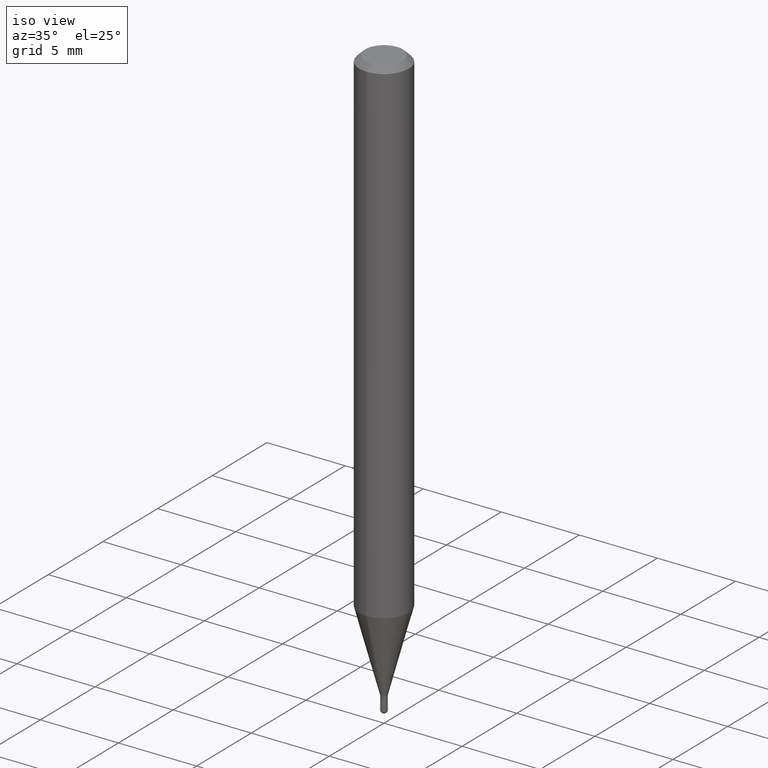
[diagram: clean part render]
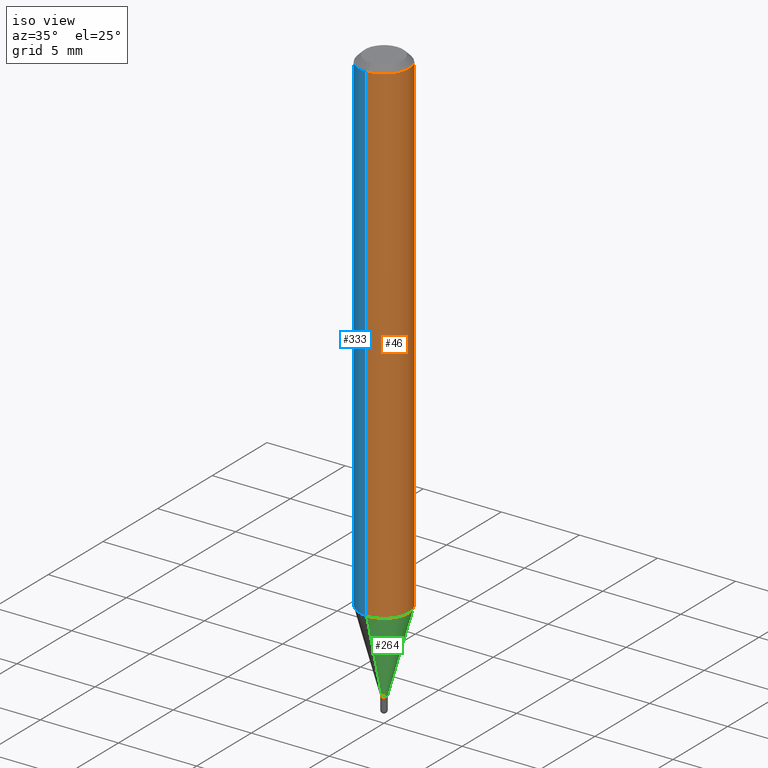
[diagram: same view with three faces highlighted in distinct colors, each labeled with its STEP entity id]
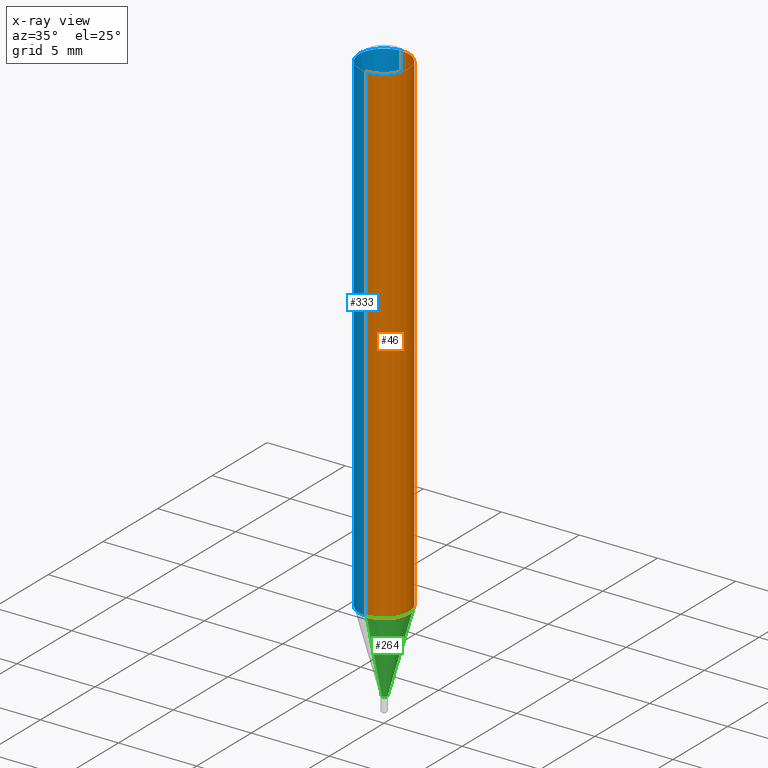
[diagram: x-ray of the same camera — body ghosted, the three highlighted faces saturated]
A machine part, iso view with three faces highlighted in distinct colors.
The next image is the same camera in x-ray (body ghosted, the three faces saturated) — at least one of them is partly hidden behind the body in this view.
Their STEP definitions:

[orange] entity #46 — the highlighted cylindrical surface (edge-blend (fillet) strip) has radius 1.5875 mm, axis along (-0, 0, 1).
#6 = EDGE_CURVE ( 'NONE', #245, #232, #312, .T. ) ;
#46 = ADVANCED_FACE ( 'NONE', ( #189 ), #211, .T. ) ;
#79 = AXIS2_PLACEMENT_3D ( 'NONE', #387, #177, #149 ) ;
#102 = DIRECTION ( 'NONE',  ( -6.982962677686265922E-15, -1.000000000000000000, 4.370956789862821150E-15 ) ) ;
#143 = VERTEX_POINT ( 'NONE', #306 ) ;
#149 = DIRECTION ( 'NONE',  ( -6.982962677686265133E-15, -1.000000000000000000, 3.488935801686873552E-15 ) ) ;
#162 = ORIENTED_EDGE ( 'NONE', *, *, #250, .F. ) ;
#177 = DIRECTION ( 'NONE',  ( -2.447246345280827304E-29, 3.488935801686874341E-15, 1.000000000000000000 ) ) ;
#181 = CARTESIAN_POINT ( 'NONE',  ( -4.364351673553609038E-16, -0.06250000000000437150, -1.254856820825981822 ) ) ;
#187 = ORIENTED_EDGE ( 'NONE', *, *, #287, .F. ) ;
#189 = FACE_OUTER_BOUND ( 'NONE', #407, .T. ) ;
#193 = DIRECTION ( 'NONE',  ( -2.447246345280827024E-29, 3.488935801686874341E-15, 1.000000000000000000 ) ) ;
#205 = CARTESIAN_POINT ( 'NONE',  ( 4.440892098500626162E-16, 0.06250000000000001388, -2.180584876054296463E-16 ) ) ;
#206 = VERTEX_POINT ( 'NONE', #335 ) ;
#211 = CYLINDRICAL_SURFACE ( 'NONE', #79, 0.06250000000000001388 ) ;
#223 = ORIENTED_EDGE ( 'NONE', *, *, #272, .T. ) ;
#232 = VERTEX_POINT ( 'NONE', #256 ) ;
#241 = CARTESIAN_POINT ( 'NONE',  ( 3.670869517921217028E-31, -5.233403702530276998E-17, -0.01499999999999990230 ) ) ;
#245 = VERTEX_POINT ( 'NONE', #181 ) ;
#250 = EDGE_CURVE ( 'NONE', #245, #206, #339, .T. ) ;
#253 = CARTESIAN_POINT ( 'NONE',  ( 3.070943768617102589E-29, -4.378114888170739997E-15, -1.254856820825982044 ) ) ;
#255 = VECTOR ( 'NONE', #193, 39.37007874015748143 ) ;
#256 = CARTESIAN_POINT ( 'NONE',  ( 4.440892098500930859E-16, 0.06249999999999560074, -1.254856820825982266 ) ) ;
#272 = EDGE_CURVE ( 'NONE', #232, #143, #313, .T. ) ;
#287 = EDGE_CURVE ( 'NONE', #206, #143, #378, .T. ) ;
#294 = ORIENTED_EDGE ( 'NONE', *, *, #6, .T. ) ;
#299 = CARTESIAN_POINT ( 'NONE',  ( -4.364351673553916694E-16, -0.06250000000000001388, 2.180584876054296463E-16 ) ) ;
#306 = CARTESIAN_POINT ( 'NONE',  ( 4.440892098500935790E-16, 0.06249999999999996531, -0.01500000000000011914 ) ) ;
#312 = CIRCLE ( 'NONE', #320, 0.06250000000000000000 ) ;
#313 = LINE ( 'NONE', #205, #255 ) ;
#317 = DIRECTION ( 'NONE',  ( -6.982962677686265922E-15, -1.000000000000000000, 3.483106191921934765E-15 ) ) ;
#320 = AXIS2_PLACEMENT_3D ( 'NONE', #253, #420, #102 ) ;
#321 = AXIS2_PLACEMENT_3D ( 'NONE', #241, #404, #317 ) ;
#335 = CARTESIAN_POINT ( 'NONE',  ( -4.364351673553913736E-16, -0.06250000000000006939, -0.01499999999999968373 ) ) ;
#339 = LINE ( 'NONE', #299, #490 ) ;
#378 = CIRCLE ( 'NONE', #321, 0.06250000000000001388 ) ;
#387 = CARTESIAN_POINT ( 'NONE',  ( 0.000000000000000000, 0.000000000000000000, 0.000000000000000000 ) ) ;
#404 = DIRECTION ( 'NONE',  ( -2.447246345280827304E-29, 3.488935801686874341E-15, 1.000000000000000000 ) ) ;
#407 = EDGE_LOOP ( 'NONE', ( #294, #223, #187, #162 ) ) ;
#420 = DIRECTION ( 'NONE',  ( -2.447246345280827304E-29, 3.488935801686874341E-15, 1.000000000000000000 ) ) ;
#466 = DIRECTION ( 'NONE',  ( -2.447246345280827024E-29, 3.488935801686874341E-15, 1.000000000000000000 ) ) ;
#490 = VECTOR ( 'NONE', #466, 39.37007874015748143 ) ;

[blue] entity #333 — the highlighted cylindrical surface (edge-blend (fillet) strip) has radius 1.5875 mm, axis along (-0, 0, 1).
#13 = CARTESIAN_POINT ( 'NONE',  ( 3.070943768617102589E-29, -4.378114888170739997E-15, -1.254856820825982044 ) ) ;
#22 = DIRECTION ( 'NONE',  ( -6.982962677686265133E-15, -1.000000000000000000, 3.488935801686873552E-15 ) ) ;
#40 = ORIENTED_EDGE ( 'NONE', *, *, #433, .F. ) ;
#50 = DIRECTION ( 'NONE',  ( -2.447246345280827304E-29, 3.488935801686874341E-15, 1.000000000000000000 ) ) ;
#55 = ORIENTED_EDGE ( 'NONE', *, *, #272, .F. ) ;
#70 = CIRCLE ( 'NONE', #482, 0.06250000000000001388 ) ;
#113 = DIRECTION ( 'NONE',  ( -2.447246345280827304E-29, 3.488935801686874341E-15, 1.000000000000000000 ) ) ;
#115 = AXIS2_PLACEMENT_3D ( 'NONE', #13, #316, #122 ) ;
#122 = DIRECTION ( 'NONE',  ( -6.982962677686265922E-15, -1.000000000000000000, 4.370956789862821150E-15 ) ) ;
#143 = VERTEX_POINT ( 'NONE', #306 ) ;
#146 = CARTESIAN_POINT ( 'NONE',  ( 3.670869517921217028E-31, -5.233403702530276998E-17, -0.01499999999999990230 ) ) ;
#181 = CARTESIAN_POINT ( 'NONE',  ( -4.364351673553609038E-16, -0.06250000000000437150, -1.254856820825981822 ) ) ;
#193 = DIRECTION ( 'NONE',  ( -2.447246345280827024E-29, 3.488935801686874341E-15, 1.000000000000000000 ) ) ;
#196 = AXIS2_PLACEMENT_3D ( 'NONE', #401, #50, #22 ) ;
#205 = CARTESIAN_POINT ( 'NONE',  ( 4.440892098500626162E-16, 0.06250000000000001388, -2.180584876054296463E-16 ) ) ;
#206 = VERTEX_POINT ( 'NONE', #335 ) ;
#232 = VERTEX_POINT ( 'NONE', #256 ) ;
#235 = FACE_OUTER_BOUND ( 'NONE', #463, .T. ) ;
#245 = VERTEX_POINT ( 'NONE', #181 ) ;
#250 = EDGE_CURVE ( 'NONE', #245, #206, #339, .T. ) ;
#255 = VECTOR ( 'NONE', #193, 39.37007874015748143 ) ;
#256 = CARTESIAN_POINT ( 'NONE',  ( 4.440892098500930859E-16, 0.06249999999999560074, -1.254856820825982266 ) ) ;
#259 = ORIENTED_EDGE ( 'NONE', *, *, #250, .T. ) ;
#265 = ORIENTED_EDGE ( 'NONE', *, *, #310, .T. ) ;
#270 = CYLINDRICAL_SURFACE ( 'NONE', #196, 0.06250000000000001388 ) ;
#272 = EDGE_CURVE ( 'NONE', #232, #143, #313, .T. ) ;
#299 = CARTESIAN_POINT ( 'NONE',  ( -4.364351673553916694E-16, -0.06250000000000001388, 2.180584876054296463E-16 ) ) ;
#306 = CARTESIAN_POINT ( 'NONE',  ( 4.440892098500935790E-16, 0.06249999999999996531, -0.01500000000000011914 ) ) ;
#310 = EDGE_CURVE ( 'NONE', #232, #245, #429, .T. ) ;
#313 = LINE ( 'NONE', #205, #255 ) ;
#316 = DIRECTION ( 'NONE',  ( -2.447246345280827304E-29, 3.488935801686874341E-15, 1.000000000000000000 ) ) ;
#333 = ADVANCED_FACE ( 'NONE', ( #235 ), #270, .T. ) ;
#335 = CARTESIAN_POINT ( 'NONE',  ( -4.364351673553913736E-16, -0.06250000000000006939, -0.01499999999999968373 ) ) ;
#339 = LINE ( 'NONE', #299, #490 ) ;
#340 = DIRECTION ( 'NONE',  ( -6.982962677686265922E-15, -1.000000000000000000, 3.483106191921934765E-15 ) ) ;
#401 = CARTESIAN_POINT ( 'NONE',  ( 0.000000000000000000, 0.000000000000000000, 0.000000000000000000 ) ) ;
#429 = CIRCLE ( 'NONE', #115, 0.06250000000000000000 ) ;
#433 = EDGE_CURVE ( 'NONE', #143, #206, #70, .T. ) ;
#463 = EDGE_LOOP ( 'NONE', ( #55, #265, #259, #40 ) ) ;
#466 = DIRECTION ( 'NONE',  ( -2.447246345280827024E-29, 3.488935801686874341E-15, 1.000000000000000000 ) ) ;
#482 = AXIS2_PLACEMENT_3D ( 'NONE', #146, #113, #340 ) ;
#490 = VECTOR ( 'NONE', #466, 39.37007874015748143 ) ;

[green] entity #264 — the highlighted conical surface has half-angle 15 deg.
#6 = EDGE_CURVE ( 'NONE', #245, #232, #312, .T. ) ;
#17 = CARTESIAN_POINT ( 'NONE',  ( 3.570532417764727105E-29, -5.090357334661150945E-15, -1.459000000000000297 ) ) ;
#42 = EDGE_CURVE ( 'NONE', #373, #245, #341, .T. ) ;
#49 = AXIS2_PLACEMENT_3D ( 'NONE', #136, #505, #61 ) ;
#54 = LINE ( 'NONE', #366, #266 ) ;
#61 = DIRECTION ( 'NONE',  ( -6.982962677686265922E-15, -1.000000000000000000, 0.000000000000000000 ) ) ;
#81 = CARTESIAN_POINT ( 'NONE',  ( 2.497557716197072184E-16, 0.007799999999994547406, -1.459000000000000297 ) ) ;
#90 = DIRECTION ( 'NONE',  ( -6.982962677686265922E-15, -1.000000000000000000, 0.000000000000000000 ) ) ;
#102 = DIRECTION ( 'NONE',  ( -6.982962677686265922E-15, -1.000000000000000000, 4.370956789862821150E-15 ) ) ;
#136 = CARTESIAN_POINT ( 'NONE',  ( 3.570532417764727105E-29, -5.090357334661150945E-15, -1.459000000000000297 ) ) ;
#167 = DIRECTION ( 'NONE',  ( 1.839019923739600710E-15, 0.2588190451025250138, 0.9659258262890670910 ) ) ;
#173 = VERTEX_POINT ( 'NONE', #81 ) ;
#181 = CARTESIAN_POINT ( 'NONE',  ( -4.364351673553609038E-16, -0.06250000000000437150, -1.254856820825981822 ) ) ;
#210 = EDGE_CURVE ( 'NONE', #373, #173, #475, .T. ) ;
#228 = AXIS2_PLACEMENT_3D ( 'NONE', #17, #319, #90 ) ;
#232 = VERTEX_POINT ( 'NONE', #256 ) ;
#242 = ORIENTED_EDGE ( 'NONE', *, *, #352, .T. ) ;
#245 = VERTEX_POINT ( 'NONE', #181 ) ;
#253 = CARTESIAN_POINT ( 'NONE',  ( 3.070943768617102589E-29, -4.378114888170739997E-15, -1.254856820825982044 ) ) ;
#256 = CARTESIAN_POINT ( 'NONE',  ( 4.440892098500930859E-16, 0.06249999999999560074, -1.254856820825982266 ) ) ;
#264 = ADVANCED_FACE ( 'NONE', ( #363 ), #510, .T. ) ;
#266 = VECTOR ( 'NONE', #167, 39.37007874015748143 ) ;
#275 = EDGE_LOOP ( 'NONE', ( #280, #242, #362, #288 ) ) ;
#280 = ORIENTED_EDGE ( 'NONE', *, *, #210, .T. ) ;
#288 = ORIENTED_EDGE ( 'NONE', *, *, #42, .F. ) ;
#312 = CIRCLE ( 'NONE', #320, 0.06250000000000000000 ) ;
#319 = DIRECTION ( 'NONE',  ( -2.447246345280827304E-29, 3.488935801686874341E-15, 1.000000000000000000 ) ) ;
#320 = AXIS2_PLACEMENT_3D ( 'NONE', #253, #420, #102 ) ;
#323 = CARTESIAN_POINT ( 'NONE',  ( -5.446710888591464223E-17, -0.007800000000004727631, -1.459000000000000297 ) ) ;
#341 = LINE ( 'NONE', #503, #480 ) ;
#352 = EDGE_CURVE ( 'NONE', #173, #232, #54, .T. ) ;
#362 = ORIENTED_EDGE ( 'NONE', *, *, #6, .F. ) ;
#363 = FACE_OUTER_BOUND ( 'NONE', #275, .T. ) ;
#366 = CARTESIAN_POINT ( 'NONE',  ( 5.542233338932093795E-17, 0.007799999999994547406, -1.459000000000000297 ) ) ;
#373 = VERTEX_POINT ( 'NONE', #323 ) ;
#420 = DIRECTION ( 'NONE',  ( -2.447246345280827304E-29, 3.488935801686874341E-15, 1.000000000000000000 ) ) ;
#425 = DIRECTION ( 'NONE',  ( -1.807323732225330534E-15, -0.2588190451025182415, 0.9659258262890689783 ) ) ;
#475 = CIRCLE ( 'NONE', #49, 0.007799999999999637952 ) ;
#480 = VECTOR ( 'NONE', #425, 39.37007874015748143 ) ;
#503 = CARTESIAN_POINT ( 'NONE',  ( -5.446710888591464223E-17, -0.007800000000004727631, -1.459000000000000297 ) ) ;
#505 = DIRECTION ( 'NONE',  ( -2.447246345280827304E-29, 3.488935801686874341E-15, 1.000000000000000000 ) ) ;
#510 = CONICAL_SURFACE ( 'NONE', #228, 0.007799999999999637952, 0.2617993877991502960 ) ;